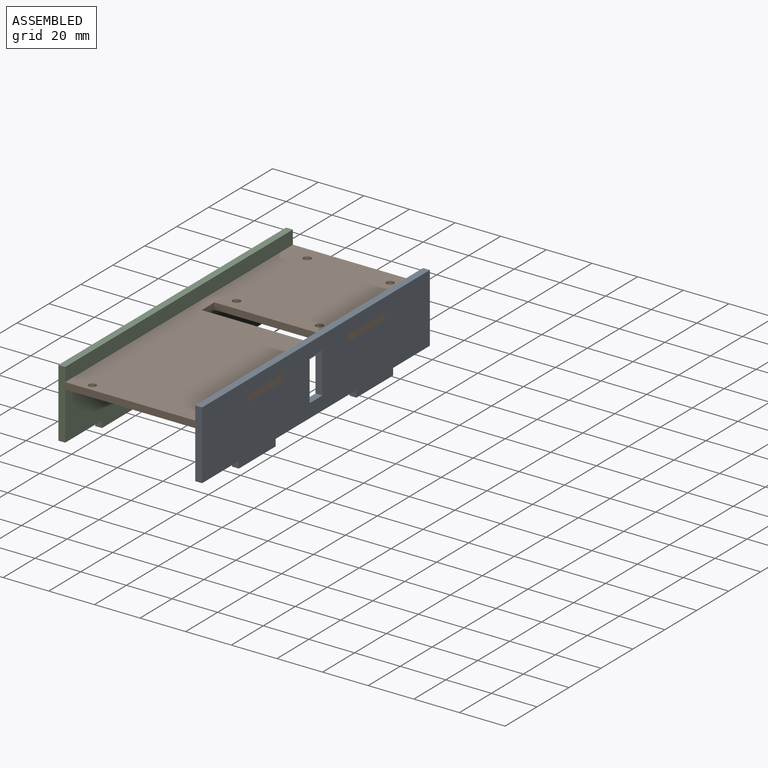
[diagram: assembled view]
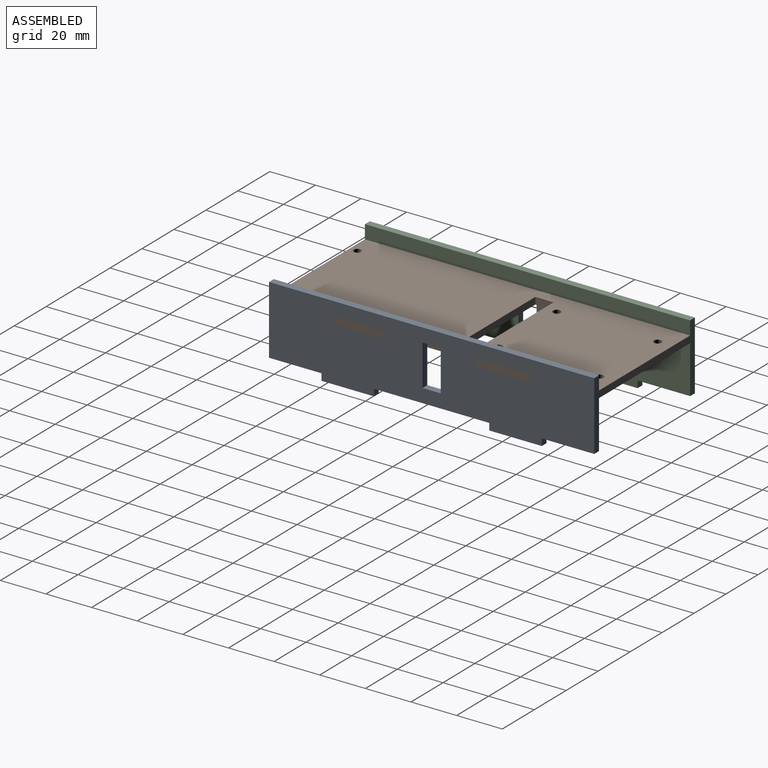
[diagram: assembled view, second angle]
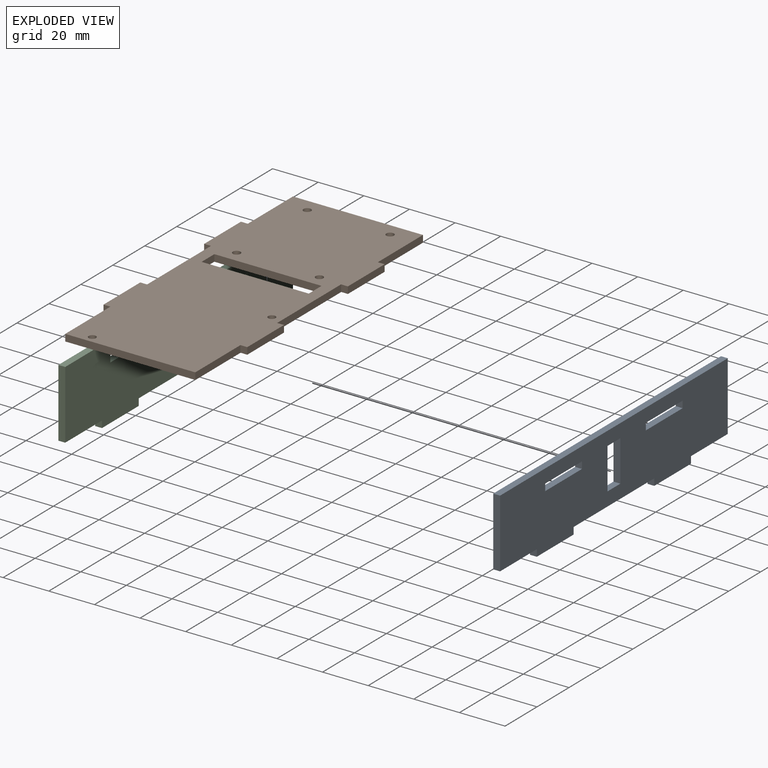
[diagram: exploded view]
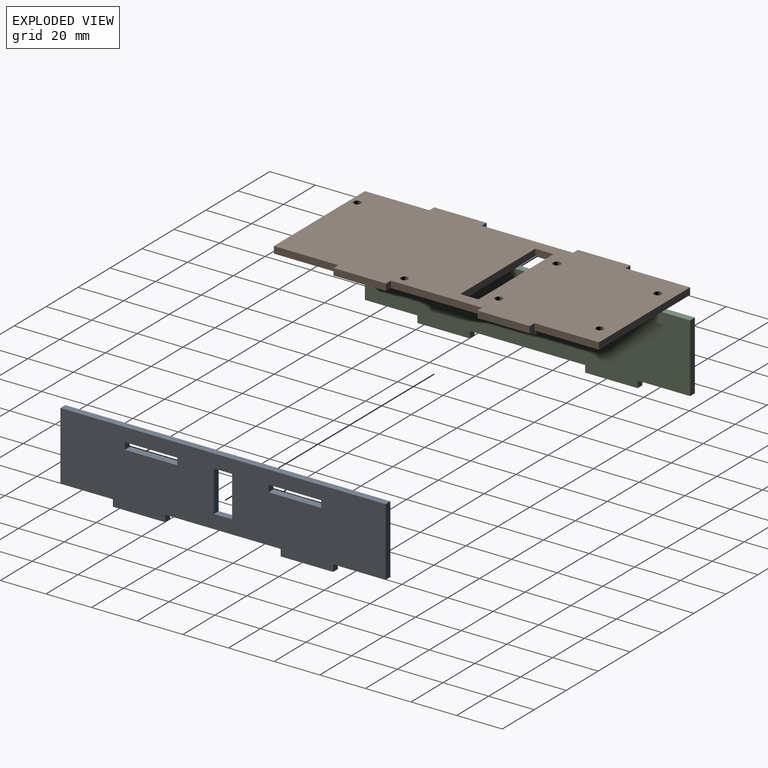
[diagram: exploded view, second angle]
ASSEMBLY  parts=3 mates=2
PART A: 26 faces, bbox 3x142.5x33 mm
  f0: plane 142.54x33mm, normal (-1,0,0), area 4132mm2, adj f1,f2,f3,f4,f5,f6,f8,f9
  f1: plane 23x3mm, normal (0,0,-1), area 69mm2, adj f0,f4,f7,f11
  f2: plane 50.54x3mm, normal (0,0,-1), area 151.6mm2, adj f0,f7,f9,f12
  f3: plane 23x3mm, normal (0,0,-1), area 69mm2, adj f0,f6,f7,f8
  f4: plane 30x3mm, normal (0,1,0), area 90mm2, adj f0,f1,f5,f7
  f5: plane 142.54x3mm, normal (0,0,1), area 427.6mm2, adj f0,f4,f6,f7
  f6: plane 30x3mm, normal (0,-1,0), area 90mm2, adj f0,f3,f5,f7
  f7: plane 142.54x33mm, normal (1,0,0), area 4132.1mm2, adj f1,f2,f3,f4,f5,f6,f8,f9
  f8: plane 3x3mm, normal (0,-1,0), area 9mm2, adj f0,f3,f7,f10
  f9: plane 3x3mm, normal (0,1,0), area 9mm2, adj f0,f2,f7,f10
  f10: plane 23x3mm, normal (0,0,-1), area 69mm2, adj f0,f7,f8,f9
  f11: plane 3x3mm, normal (0,1,0), area 9mm2, adj f0,f1,f7,f13
  f12: plane 3x3mm, normal (0,-1,0), area 9mm2, adj f0,f2,f7,f13
  f13: plane 23x3mm, normal (0,0,-1), area 69mm2, adj f0,f7,f11,f12
  f14: plane 3x3mm, normal (0,1,0), area 9mm2, adj f0,f7,f16,f17
  f15: plane 3x3mm, normal (0,-1,0), area 9mm2, adj f0,f7,f16,f17
  f16: plane 23x3mm, normal (0,0,1), area 69mm2, adj f0,f7,f14,f15
  f17: plane 23x3mm, normal (0,0,-1), area 69mm2, adj f0,f7,f14,f15
  f18: plane 23x3mm, normal (0,0,-1), area 69mm2, adj f0,f7,f20,f21
  f19: plane 23x3mm, normal (0,0,1), area 69mm2, adj f0,f7,f20,f21
  f20: plane 3x3mm, normal (0,1,0), area 9mm2, adj f0,f7,f18,f19
  f21: plane 3x3mm, normal (0,-1,0), area 9mm2, adj f0,f7,f18,f19
  f22: plane 18x3mm, normal (0,-1,0), area 54mm2, adj f0,f7,f23,f25
  f23: plane 8x3mm, normal (0,0,-1), area 24mm2, adj f0,f7,f22,f24
  f24: plane 18x3mm, normal (0,1,0), area 54mm2, adj f0,f7,f23,f25
  f25: plane 8x3mm, normal (0,0,1), area 24mm2, adj f0,f7,f22,f24
PART B: 32 faces, bbox 63x142.5x3 mm
  f0: plane 142.54x63mm, normal (0,0,1), area 7973.6mm2, adj f2,f3,f4,f5,f6,f7,f8,f9
  f1: plane 142.54x63mm, normal (0,0,-1), area 7973.6mm2, adj f2,f3,f4,f5,f6,f7,f8,f9
  f2: plane 57x3mm, normal (0,-1,0), area 171mm2, adj f0,f1,f14,f17
  f3: plane 23x3mm, normal (1,0,0), area 69mm2, adj f0,f1,f9,f19
  f4: plane 23x3mm, normal (1,0,0), area 69mm2, adj f0,f1,f13,f21
  f5: plane 57x3mm, normal (0,1,0), area 171mm2, adj f0,f1,f8,f16
  f6: plane 23x3mm, normal (-1,0,0), area 69mm2, adj f0,f1,f11,f18
  f7: plane 23x3mm, normal (-1,0,0), area 69mm2, adj f0,f1,f10,f15
  f8: plane 28.27x3mm, normal (1,0,0), area 84.8mm2, adj f0,f1,f5,f9
  f9: plane 3x3mm, normal (0,1,0), area 9mm2, adj f0,f1,f3,f8
  f10: plane 3x3mm, normal (0,-1,0), area 9mm2, adj f0,f1,f7,f12
  f11: plane 3x3mm, normal (0,1,0), area 9mm2, adj f0,f1,f6,f12
  f12: plane 40x3mm, normal (-1,0,0), area 120mm2, adj f0,f1,f10,f11
  f13: plane 3x3mm, normal (0,-1,0), area 9mm2, adj f0,f1,f4,f14
  f14: plane 28.27x3mm, normal (1,0,0), area 84.8mm2, adj f0,f1,f2,f13
  f15: plane 3x3mm, normal (0,1,0), area 9mm2, adj f0,f1,f7,f16
  f16: plane 28.27x3mm, normal (-1,0,0), area 84.8mm2, adj f0,f1,f5,f15
  f17: plane 28.27x3mm, normal (-1,0,0), area 84.8mm2, adj f0,f1,f2,f18
  f18: plane 3x3mm, normal (0,-1,0), area 9mm2, adj f0,f1,f6,f17
  f19: plane 3x3mm, normal (0,-1,0), area 9mm2, adj f0,f1,f3,f20
  f20: plane 40x3mm, normal (1,0,0), area 120mm2, adj f0,f1,f19,f21
  f21: plane 3x3mm, normal (0,1,0), area 9mm2, adj f0,f1,f4,f20
  f22: plane 47x3mm, normal (0,1,0), area 141mm2, adj f0,f1,f23,f25
  f23: plane 8x3mm, normal (-1,0,0), area 24mm2, adj f0,f1,f22,f24
  f24: plane 47x3mm, normal (0,-1,0), area 141mm2, adj f0,f1,f23,f25
  f25: plane 8x3mm, normal (1,0,0), area 24mm2, adj f0,f1,f22,f24
  f26: cylinder r=1.67mm len=3.33mm, axis (0,0,1), area 31.4mm2, adj f0,f1
  f27: cylinder r=1.67mm len=3.33mm, axis (0,0,1), area 31.4mm2, adj f0,f1
  f28: cylinder r=1.67mm len=3.33mm, axis (0,0,1), area 31.4mm2, adj f0,f1
  f29: cylinder r=1.67mm len=3.33mm, axis (0,0,1), area 31.4mm2, adj f0,f1
  f30: cylinder r=1.6mm len=3.2mm, axis (0,0,1), area 30.2mm2, adj f0,f1
  f31: cylinder r=1.6mm len=3.2mm, axis (0,0,1), area 30.2mm2, adj f0,f1
PART C: same geometry as A
PLACE A t=(56.18,8.43,-15.36)mm
PLACE B t=(27.68,8.43,-9.36)mm
PLACE C t=(-3.82,8.43,-15.36)mm
MATE fastened A.f0 <-> B.f14  axis (-1,0,0) through (56.18,-34.57,-9.36)mm
MATE fastened B.f17 <-> C.f7  axis (-1,0,0) through (-0.82,-62.84,-6.36)mm
